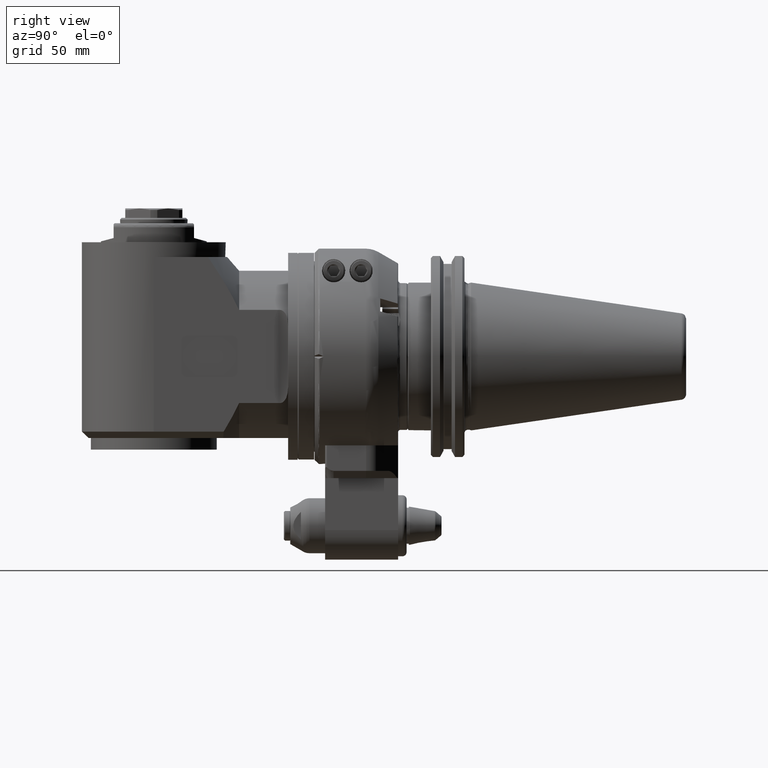
[diagram: clean part render]
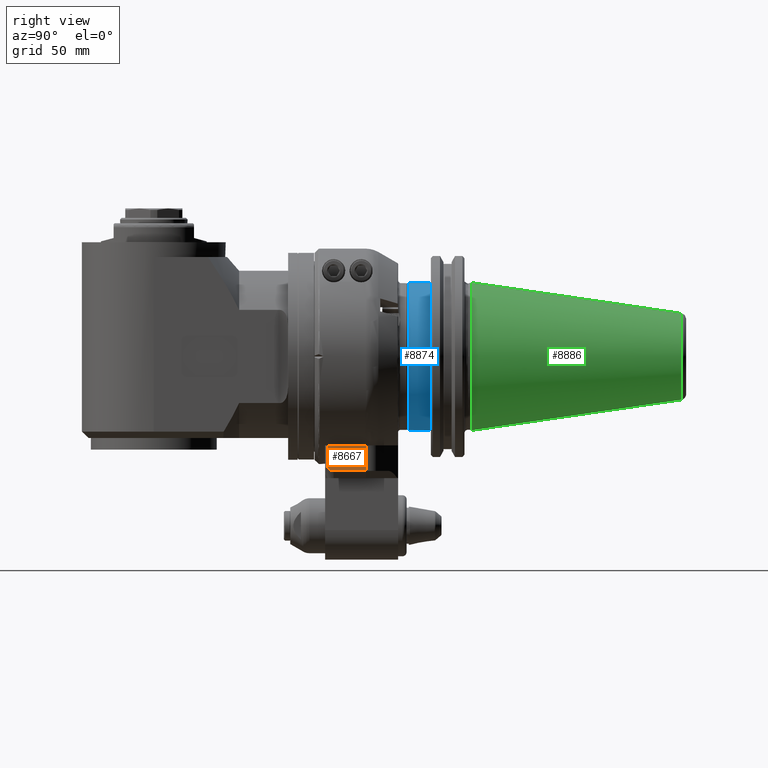
[diagram: same view with three faces highlighted in distinct colors, each labeled with its STEP entity id]
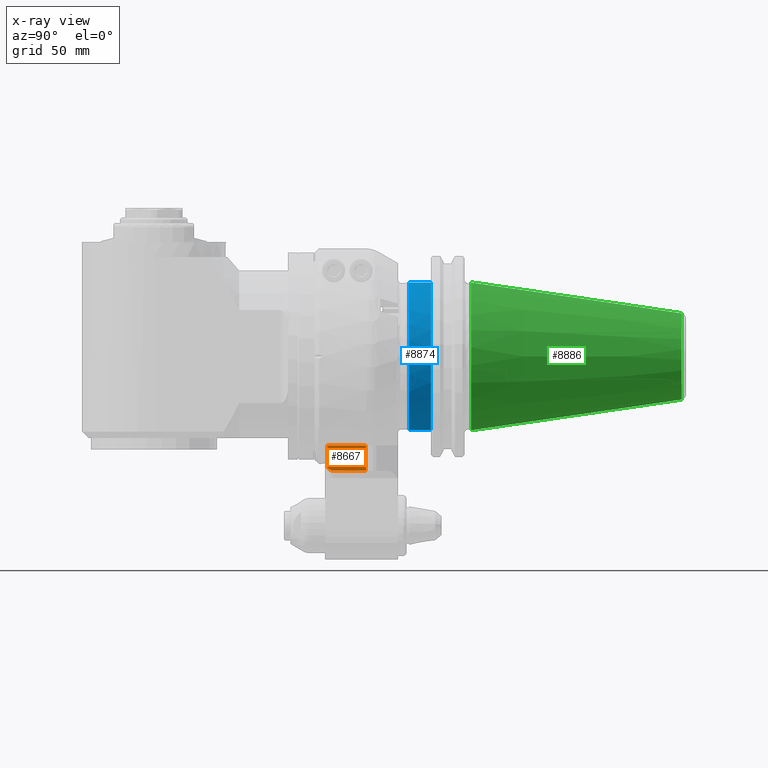
[diagram: x-ray of the same camera — body ghosted, the three highlighted faces saturated]
A machine part, right view with three faces highlighted in distinct colors.
The next image is the same camera in x-ray (body ghosted, the three faces saturated) — at least one of them is partly hidden behind the body in this view.
Their STEP definitions:

[orange] entity #8667 — the highlighted planar face has unit normal (-1, 0, 0).
#146=B_SPLINE_CURVE_WITH_KNOTS('',3,(#15858,#15859,#15860,#15861,#15862,
#15863,#15864,#15865,#15866,#15867,#15868,#15869,#15870,#15871,#15872,#15873,
#15874),.UNSPECIFIED.,.F.,.F.,(4,1,1,1,1,1,1,1,1,1,1,1,1,1,4),(0.,0.07142857142857,
0.1428571428571,0.2142857142857,0.2857142857143,0.3571428571429,0.4285714285714,
0.5,0.5714285714286,0.6428571428571,0.7142857142857,0.7857142857143,0.8571428571429,
0.9285714285714,1.),.UNSPECIFIED.);
#571=LINE('',#15346,#1188);
#624=LINE('',#15824,#1241);
#628=LINE('',#15855,#1245);
#629=LINE('',#15857,#1246);
#1188=VECTOR('',#11145,18.26953855035);
#1241=VECTOR('',#11400,12.03589877858);
#1245=VECTOR('',#11412,15.26953889725);
#1246=VECTOR('',#11413,10.59664825897);
#2034=FACE_OUTER_BOUND('',#2601,.T.);
#2601=EDGE_LOOP('',(#6827,#6828,#6829,#6830,#6831));
#3813=VERTEX_POINT('',#15343);
#3814=VERTEX_POINT('',#15345);
#3886=VERTEX_POINT('',#15819);
#3888=VERTEX_POINT('',#15854);
#3889=VERTEX_POINT('',#15856);
#4823=EDGE_CURVE('',#3814,#3813,#571,.T.);
#4942=EDGE_CURVE('',#3814,#3886,#624,.T.);
#4947=EDGE_CURVE('',#3888,#3886,#628,.T.);
#4948=EDGE_CURVE('',#3889,#3813,#629,.T.);
#4949=EDGE_CURVE('',#3888,#3889,#146,.T.);
#6827=ORIENTED_EDGE('',*,*,#4947,.T.);
#6828=ORIENTED_EDGE('',*,*,#4942,.F.);
#6829=ORIENTED_EDGE('',*,*,#4823,.T.);
#6830=ORIENTED_EDGE('',*,*,#4948,.F.);
#6831=ORIENTED_EDGE('',*,*,#4949,.F.);
#8275=PLANE('',#9544);
#8667=ADVANCED_FACE('',(#2034),#8275,.F.);
#9544=AXIS2_PLACEMENT_3D('',#15853,#11410,#11411);
#11145=DIRECTION('',(0.,-1.,0.));
#11400=DIRECTION('',(2.941657496709E-10,-1.143139752064E-8,-1.));
#11410=DIRECTION('center_axis',(-1.,0.,0.));
#11411=DIRECTION('ref_axis',(0.,0.,-1.));
#11412=DIRECTION('',(2.318712421219E-10,1.,4.016102300856E-10));
#11413=DIRECTION('',(-8.180531394858E-14,-1.385745138844E-12,1.));
#15343=CARTESIAN_POINT('',(29.,6.,-42.));
#15345=CARTESIAN_POINT('',(29.,24.26953855035,-42.));
#15346=CARTESIAN_POINT('',(29.,24.26953855035,-42.));
#15819=CARTESIAN_POINT('',(29.0000000432431,24.2695384127614,-54.0358986870676));
#15824=CARTESIAN_POINT('',(29.,24.26953855035,-42.));
#15853=CARTESIAN_POINT('Origin',(29.,31.,-75.75));
#15854=CARTESIAN_POINT('',(29.,8.999999515516,-54.03589878471));
#15855=CARTESIAN_POINT('',(29.,8.999999515516,-54.03589878471));
#15856=CARTESIAN_POINT('',(29.,6.000000000015,-52.59664825897));
#15857=CARTESIAN_POINT('',(29.,6.000000000015,-52.59664825897));
#15858=CARTESIAN_POINT('Ctrl Pts',(29.,8.999999515516,-54.03589878471));
#15859=CARTESIAN_POINT('Ctrl Pts',(29.,8.93766928965,-54.03589878471));
#15860=CARTESIAN_POINT('Ctrl Pts',(29.,8.812751588892,-54.03185847971));
#15861=CARTESIAN_POINT('Ctrl Pts',(29.,8.624725286982,-54.01357321182));
#15862=CARTESIAN_POINT('Ctrl Pts',(29.,8.435683206974,-53.98295959559));
#15863=CARTESIAN_POINT('Ctrl Pts',(29.,8.244434796208,-53.93965366781));
#15864=CARTESIAN_POINT('Ctrl Pts',(29.,8.049913516718,-53.8830459828));
#15865=CARTESIAN_POINT('Ctrl Pts',(29.,7.852074434357,-53.81272483807));
#15866=CARTESIAN_POINT('Ctrl Pts',(29.,7.649918068956,-53.72793122166));
#15867=CARTESIAN_POINT('Ctrl Pts',(29.,7.441864134709,-53.62737545076));
#15868=CARTESIAN_POINT('Ctrl Pts',(29.,7.227537511476,-53.51014571475));
#15869=CARTESIAN_POINT('Ctrl Pts',(29.,7.005621063458,-53.37476222808));
#15870=CARTESIAN_POINT('Ctrl Pts',(29.,6.77370194145,-53.21869736767));
#15871=CARTESIAN_POINT('Ctrl Pts',(29.,6.530474640701,-53.03977417713));
#15872=CARTESIAN_POINT('Ctrl Pts',(29.,6.274080193104,-52.83521269088));
#15873=CARTESIAN_POINT('Ctrl Pts',(29.,6.092872382958,-52.67940987755));
#15874=CARTESIAN_POINT('Ctrl Pts',(29.,6.000000000015,-52.59664825897));

[blue] entity #8874 — the highlighted cylindrical surface (bore or boss wall) has radius 34.925 mm, axis along (0, -1, 0).
#860=LINE('',#17447,#1477);
#1477=VECTOR('',#12394,34.925);
#1703=CYLINDRICAL_SURFACE('',#9919,34.925);
#2241=FACE_OUTER_BOUND('',#2842,.T.);
#2842=EDGE_LOOP('',(#7743,#7744,#7745,#7746,#7747));
#3372=CIRCLE('',#9917,34.925);
#3373=CIRCLE('',#9918,34.925);
#3374=CIRCLE('',#9920,34.925);
#4156=VERTEX_POINT('',#17440);
#4157=VERTEX_POINT('',#17441);
#4158=VERTEX_POINT('',#17446);
#5380=EDGE_CURVE('',#4156,#4157,#3372,.T.);
#5382=EDGE_CURVE('',#4157,#4156,#3373,.T.);
#5383=EDGE_CURVE('',#4156,#4158,#860,.T.);
#5384=EDGE_CURVE('',#4158,#4158,#3374,.T.);
#7743=ORIENTED_EDGE('',*,*,#5380,.F.);
#7744=ORIENTED_EDGE('',*,*,#5383,.T.);
#7745=ORIENTED_EDGE('',*,*,#5384,.F.);
#7746=ORIENTED_EDGE('',*,*,#5383,.F.);
#7747=ORIENTED_EDGE('',*,*,#5382,.F.);
#8874=ADVANCED_FACE('',(#2241),#1703,.T.);
#9917=AXIS2_PLACEMENT_3D('',#17442,#12387,#12388);
#9918=AXIS2_PLACEMENT_3D('',#17444,#12390,#12391);
#9919=AXIS2_PLACEMENT_3D('',#17445,#12392,#12393);
#9920=AXIS2_PLACEMENT_3D('',#17448,#12395,#12396);
#12387=DIRECTION('center_axis',(0.,-1.,0.));
#12388=DIRECTION('ref_axis',(1.,0.,0.));
#12390=DIRECTION('center_axis',(0.,-1.,0.));
#12391=DIRECTION('ref_axis',(1.,0.,0.));
#12392=DIRECTION('center_axis',(0.,-1.,0.));
#12393=DIRECTION('ref_axis',(0.,0.,-1.));
#12394=DIRECTION('',(0.,1.,0.));
#12395=DIRECTION('center_axis',(0.,1.,0.));
#12396=DIRECTION('ref_axis',(0.,0.,-1.));
#17440=CARTESIAN_POINT('',(0.,44.5,34.925));
#17441=CARTESIAN_POINT('',(34.925,44.5,-4.27707894602213E-15));
#17442=CARTESIAN_POINT('Origin',(0.,44.5,0.));
#17444=CARTESIAN_POINT('Origin',(0.,44.5,0.));
#17445=CARTESIAN_POINT('Origin',(0.,42.,0.));
#17446=CARTESIAN_POINT('',(0.,54.95,34.925));
#17447=CARTESIAN_POINT('',(-4.27707894602213E-15,42.,34.925));
#17448=CARTESIAN_POINT('Origin',(0.,54.95,0.));

[green] entity #8886 — the highlighted conical surface has half-angle 8.297 deg.
#281=CONICAL_SURFACE('',#9954,27.67265681028,0.144812411498922);
#884=LINE('',#17568,#1501);
#1501=VECTOR('',#12488,27.67265681028);
#2253=FACE_OUTER_BOUND('',#2855,.T.);
#2855=EDGE_LOOP('',(#7823,#7824,#7825,#7826,#7827,#7828));
#3395=CIRCLE('',#9952,34.925);
#3396=CIRCLE('',#9953,34.925);
#3397=CIRCLE('',#9955,20.42031362057);
#3398=CIRCLE('',#9956,20.42031362057);
#4195=VERTEX_POINT('',#17561);
#4196=VERTEX_POINT('',#17562);
#4197=VERTEX_POINT('',#17567);
#4198=VERTEX_POINT('',#17569);
#5431=EDGE_CURVE('',#4195,#4196,#3395,.T.);
#5433=EDGE_CURVE('',#4196,#4195,#3396,.T.);
#5434=EDGE_CURVE('',#4195,#4197,#884,.T.);
#5435=EDGE_CURVE('',#4198,#4197,#3397,.T.);
#5436=EDGE_CURVE('',#4197,#4198,#3398,.T.);
#7823=ORIENTED_EDGE('',*,*,#5431,.F.);
#7824=ORIENTED_EDGE('',*,*,#5434,.T.);
#7825=ORIENTED_EDGE('',*,*,#5435,.F.);
#7826=ORIENTED_EDGE('',*,*,#5436,.F.);
#7827=ORIENTED_EDGE('',*,*,#5434,.F.);
#7828=ORIENTED_EDGE('',*,*,#5433,.F.);
#8886=ADVANCED_FACE('',(#2253),#281,.T.);
#9952=AXIS2_PLACEMENT_3D('',#17563,#12481,#12482);
#9953=AXIS2_PLACEMENT_3D('',#17565,#12484,#12485);
#9954=AXIS2_PLACEMENT_3D('',#17566,#12486,#12487);
#9955=AXIS2_PLACEMENT_3D('',#17570,#12489,#12490);
#9956=AXIS2_PLACEMENT_3D('',#17571,#12491,#12492);
#12481=DIRECTION('center_axis',(0.,-1.,0.));
#12482=DIRECTION('ref_axis',(0.,0.,1.));
#12484=DIRECTION('center_axis',(0.,-1.,0.));
#12485=DIRECTION('ref_axis',(0.,0.,1.));
#12486=DIRECTION('center_axis',(0.,-1.,0.));
#12487=DIRECTION('ref_axis',(0.,0.,1.));
#12488=DIRECTION('',(-1.76724869581176E-17,0.98953299358046,0.144306807239621));
#12489=DIRECTION('center_axis',(0.,1.,0.));
#12490=DIRECTION('ref_axis',(0.,0.,1.));
#12491=DIRECTION('center_axis',(0.,1.,0.));
#12492=DIRECTION('ref_axis',(0.,0.,1.));
#17561=CARTESIAN_POINT('',(0.,74.,-34.925));
#17562=CARTESIAN_POINT('',(4.27707894602218E-15,73.9999999999999,34.9250000000004));
#17563=CARTESIAN_POINT('Origin',(0.,74.,0.));
#17565=CARTESIAN_POINT('Origin',(0.,74.,0.));
#17566=CARTESIAN_POINT('Origin',(0.,123.730383509,0.));
#17567=CARTESIAN_POINT('',(2.50076717129998E-15,173.460767018098,-20.4203136205566));
#17568=CARTESIAN_POINT('',(3.38892305866126E-15,123.730383509,-27.67265681028));
#17569=CARTESIAN_POINT('',(-20.42031362057,173.4607670181,-2.50076717130162E-15));
#17570=CARTESIAN_POINT('Origin',(0.,173.4607670181,0.));
#17571=CARTESIAN_POINT('Origin',(0.,173.4607670181,0.));